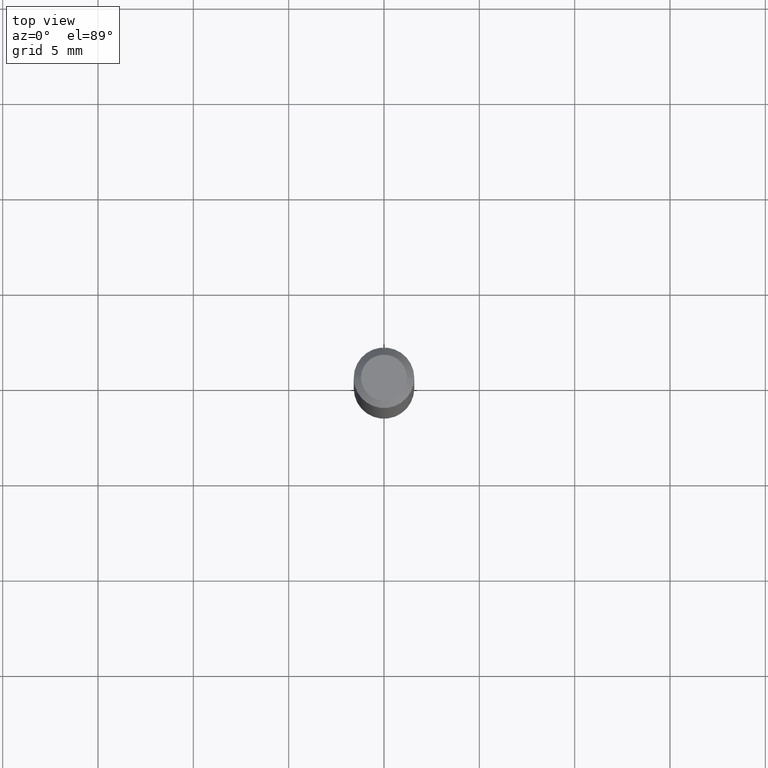
[diagram: clean part render]
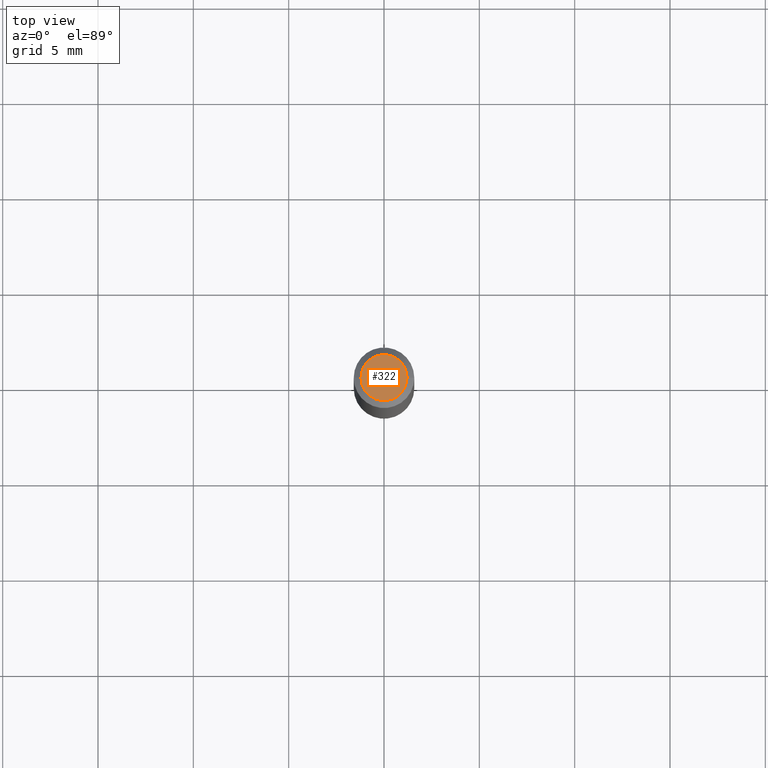
[diagram: same view with one face highlighted and labeled with its STEP entity id]
A machine part, top view. The second image highlights one B-rep face of the part: STEP entity #322.
In plain terms, the highlighted planar face has unit normal (0, -0, -1).
Its self-contained STEP definition (entity closure, byte-faithful):
#13 = DIRECTION ( 'NONE',  ( 1.000000000000000000, -6.982962677686267499E-15, 4.852736867747366768E-29 ) ) ;
#23 = CARTESIAN_POINT ( 'NONE',  ( 1.116338794773660675E-44, -1.593835938500131952E-30, -4.564927558880287530E-16 ) ) ;
#35 = CARTESIAN_POINT ( 'NONE',  ( 0.04749999999999999362, -4.035134999187586019E-16, -4.564927558880262878E-16 ) ) ;
#36 = ORIENTED_EDGE ( 'NONE', *, *, #307, .T. ) ;
#41 = FACE_OUTER_BOUND ( 'NONE', #437, .T. ) ;
#73 = DIRECTION ( 'NONE',  ( 2.438088387897960049E-29, -3.491481338843145188E-15, -1.000000000000000000 ) ) ;
#136 = DIRECTION ( 'NONE',  ( 1.000000000000000000, -6.982962677686267499E-15, 4.852736867747366768E-29 ) ) ;
#186 = CARTESIAN_POINT ( 'NONE',  ( 3.316907271900976096E-16, 0.04749999999999999362, -3.940917415390638222E-16 ) ) ;
#204 = AXIS2_PLACEMENT_3D ( 'NONE', #333, #310, #13 ) ;
#220 = DIRECTION ( 'NONE',  ( -1.000000000000000000, 6.982962677686265922E-15, -4.876176775795935793E-29 ) ) ;
#222 = AXIS2_PLACEMENT_3D ( 'NONE', #23, #245, #136 ) ;
#244 = EDGE_CURVE ( 'NONE', #324, #404, #460, .T. ) ;
#245 = DIRECTION ( 'NONE',  ( -2.445468806185136597E-29, 3.491481338843145583E-15, 1.000000000000000000 ) ) ;
#307 = EDGE_CURVE ( 'NONE', #404, #324, #316, .T. ) ;
#310 = DIRECTION ( 'NONE',  ( -2.445468806185136597E-29, 3.491481338843145583E-15, 1.000000000000000000 ) ) ;
#316 = CIRCLE ( 'NONE', #222, 0.04749999999999999362 ) ;
#322 = ADVANCED_FACE ( 'NONE', ( #41 ), #325, .F. ) ;
#324 = VERTEX_POINT ( 'NONE', #35 ) ;
#325 = PLANE ( 'NONE',  #426 ) ;
#333 = CARTESIAN_POINT ( 'NONE',  ( 1.116338794773660675E-44, -1.593835938500131952E-30, -4.564927558880287530E-16 ) ) ;
#400 = ORIENTED_EDGE ( 'NONE', *, *, #244, .T. ) ;
#404 = VERTEX_POINT ( 'NONE', #466 ) ;
#426 = AXIS2_PLACEMENT_3D ( 'NONE', #186, #73, #220 ) ;
#437 = EDGE_LOOP ( 'NONE', ( #36, #400 ) ) ;
#460 = CIRCLE ( 'NONE', #204, 0.04749999999999999362 ) ;
#466 = CARTESIAN_POINT ( 'NONE',  ( -0.04749999999999999362, 3.578768372314203110E-16, -4.564927558880312182E-16 ) ) ;